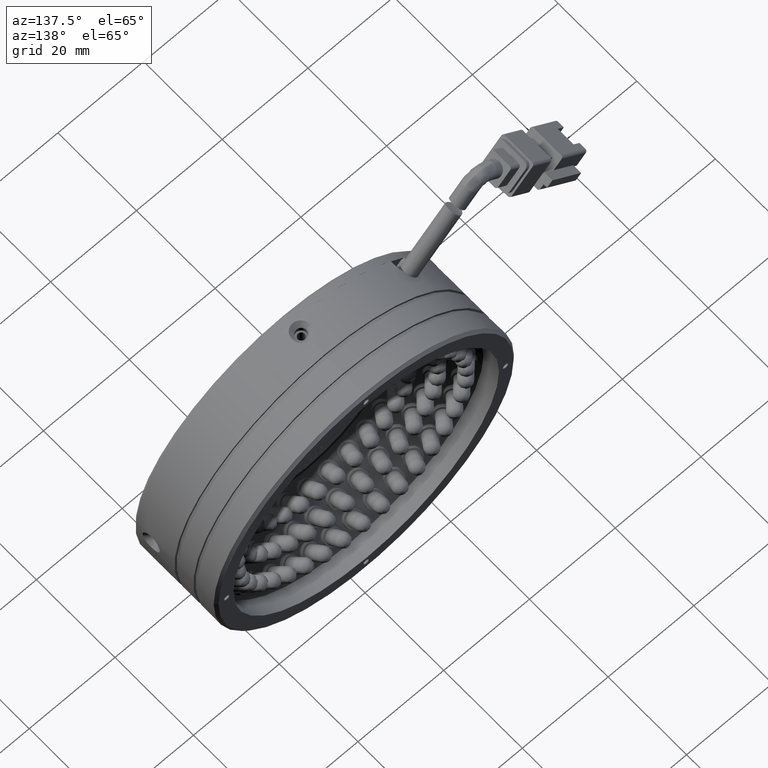
[diagram: clean part render]
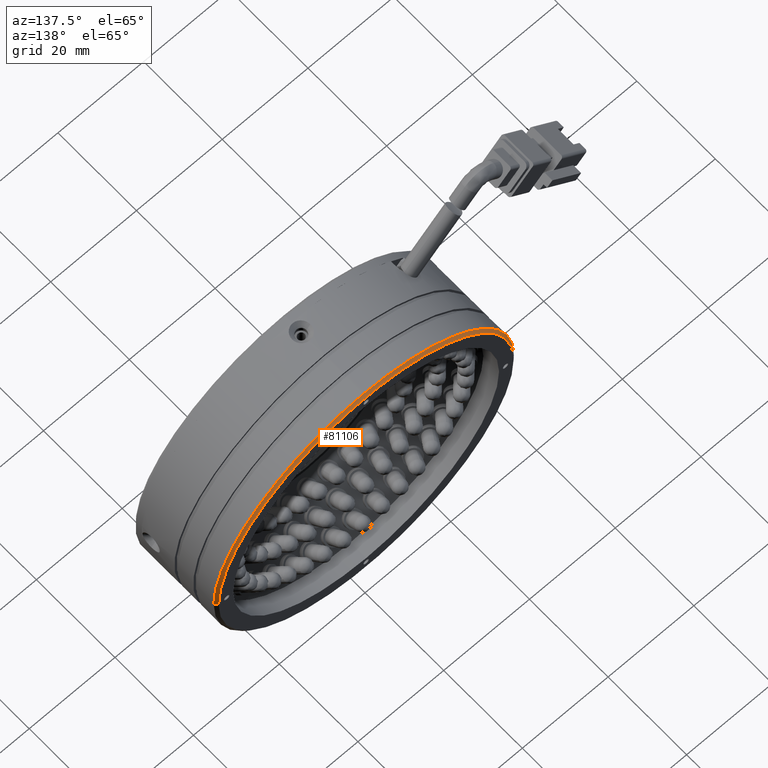
[diagram: same view with one face highlighted and labeled with its STEP entity id]
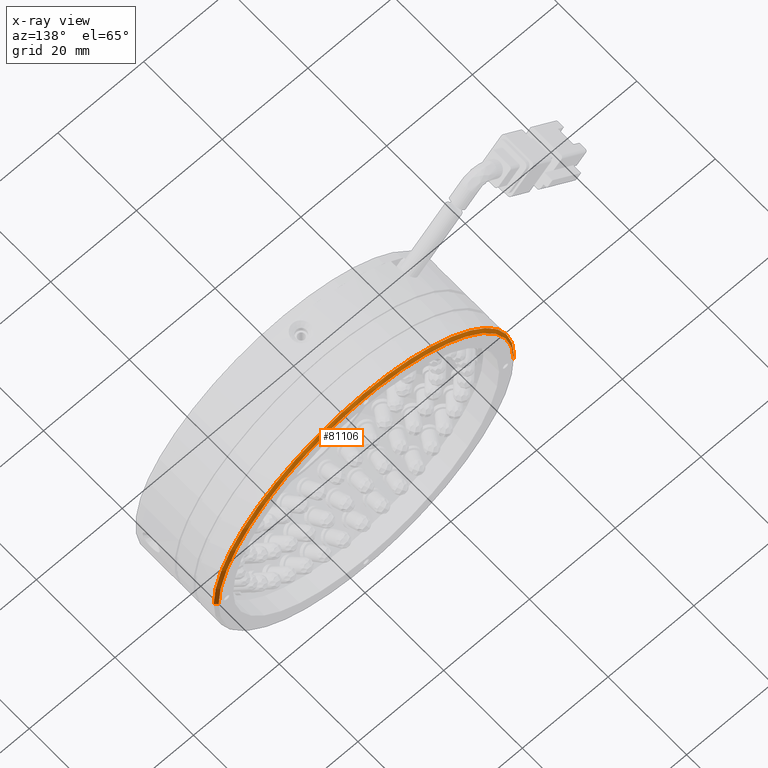
[diagram: x-ray of the same camera — body ghosted, the highlighted face saturated]
A machine part, auxiliary view. The second image highlights one B-rep face of the part: STEP entity #81106.
The next image is the same camera in x-ray: the body ghosted, the highlighted face saturated — about 0% of this face is hidden behind the body in this view.
In plain terms, the highlighted conical surface has half-angle 45 deg.
Its self-contained STEP definition (entity closure, byte-faithful):
#47 = DIRECTION ( 'NONE',  ( -0.7071067811865536800, -0.7071067811865414700, 8.659560562355008000E-017 ) ) ;
#975 = EDGE_CURVE ( 'NONE', #43134, #74250, #33437, .T. ) ;
#3114 = CIRCLE ( 'NONE', #51824, 35.00000000000001400 ) ;
#7512 = EDGE_CURVE ( 'NONE', #29853, #18117, #56009, .T. ) ;
#8892 = CARTESIAN_POINT ( 'NONE',  ( -2.716071020391490200, 16.70727133510872900, -1.131636017531745300E-015 ) ) ;
#9576 = CARTESIAN_POINT ( 'NONE',  ( -37.71607102039150300, 16.70727133510872900, 3.154627779483993200E-015 ) ) ;
#12965 = VECTOR ( 'NONE', #47, 1000.000000000000000 ) ;
#17329 = DIRECTION ( 'NONE',  ( -4.956352788505163400E-017, -1.000000000000000000, 0.0000000000000000000 ) ) ;
#18117 = VERTEX_POINT ( 'NONE', #54919 ) ;
#19286 = CARTESIAN_POINT ( 'NONE',  ( -37.11607102039153000, 17.30727133510869100, 3.117888375509573500E-015 ) ) ;
#23605 = ORIENTED_EDGE ( 'NONE', *, *, #24368, .T. ) ;
#24368 = EDGE_CURVE ( 'NONE', #52963, #43134, #82193, .T. ) ;
#24882 = DIRECTION ( 'NONE',  ( 0.0000000000000000000, 1.000000000000000000, 0.0000000000000000000 ) ) ;
#26576 = ORIENTED_EDGE ( 'NONE', *, *, #7512, .F. ) ;
#29853 = VERTEX_POINT ( 'NONE', #66497 ) ;
#32200 = DIRECTION ( 'NONE',  ( 0.7071067811865536800, -0.7071067811865414700, 0.0000000000000000000 ) ) ;
#33272 = CARTESIAN_POINT ( 'NONE',  ( -2.716071020391490200, 16.70727133510872900, -1.131636017531745300E-015 ) ) ;
#33422 = AXIS2_PLACEMENT_3D ( 'NONE', #64884, #24882, #71688 ) ;
#33437 = CIRCLE ( 'NONE', #33422, 35.00000000000001400 ) ;
#35264 = CARTESIAN_POINT ( 'NONE',  ( -2.716071020391490200, 17.30727133510869100, -1.131636017531745300E-015 ) ) ;
#38675 = EDGE_CURVE ( 'NONE', #29853, #52963, #69068, .T. ) ;
#39972 = DIRECTION ( 'NONE',  ( 0.0000000000000000000, -9.912705577010321900E-017, -1.000000000000000000 ) ) ;
#40742 = CARTESIAN_POINT ( 'NONE',  ( -2.716071020391485700, 16.70727133510872900, 35.00000000000001400 ) ) ;
#41196 = ORIENTED_EDGE ( 'NONE', *, *, #975, .T. ) ;
#41961 = DIRECTION ( 'NONE',  ( 1.000000000000000000, 0.0000000000000000000, 0.0000000000000000000 ) ) ;
#43134 = VERTEX_POINT ( 'NONE', #9576 ) ;
#44178 = DIRECTION ( 'NONE',  ( 1.000000000000000000, -9.912705577010324300E-017, 0.0000000000000000000 ) ) ;
#45690 = CARTESIAN_POINT ( 'NONE',  ( 32.28392897960852500, 16.70727133510872500, -1.131636017531745300E-015 ) ) ;
#45870 = FACE_OUTER_BOUND ( 'NONE', #75045, .T. ) ;
#46870 = CARTESIAN_POINT ( 'NONE',  ( -37.71607102039149600, 16.70727133510873200, 3.154627779483992400E-015 ) ) ;
#47313 = ORIENTED_EDGE ( 'NONE', *, *, #38675, .T. ) ;
#51824 = AXIS2_PLACEMENT_3D ( 'NONE', #33272, #80184, #39972 ) ;
#52963 = VERTEX_POINT ( 'NONE', #19286 ) ;
#54919 = CARTESIAN_POINT ( 'NONE',  ( 32.28392897960851800, 16.70727133510872900, -1.131636017531745300E-015 ) ) ;
#55155 = AXIS2_PLACEMENT_3D ( 'NONE', #8892, #17329, #44178 ) ;
#56009 = LINE ( 'NONE', #45690, #73858 ) ;
#62176 = AXIS2_PLACEMENT_3D ( 'NONE', #35264, #82135, #41961 ) ;
#64884 = CARTESIAN_POINT ( 'NONE',  ( -2.716071020391490200, 16.70727133510872900, -1.131636017531745300E-015 ) ) ;
#66497 = CARTESIAN_POINT ( 'NONE',  ( 31.68392897960855200, 17.30727133510869100, -1.131636017531745300E-015 ) ) ;
#69068 = CIRCLE ( 'NONE', #62176, 34.40000000000004100 ) ;
#71688 = DIRECTION ( 'NONE',  ( 0.0000000000000000000, -9.912705577010321900E-017, -1.000000000000000000 ) ) ;
#72394 = EDGE_CURVE ( 'NONE', #74250, #18117, #3114, .T. ) ;
#73118 = CONICAL_SURFACE ( 'NONE', #55155, 35.00000000000000700, 0.7853981633974569400 ) ;
#73858 = VECTOR ( 'NONE', #32200, 1000.000000000000000 ) ;
#74250 = VERTEX_POINT ( 'NONE', #40742 ) ;
#75045 = EDGE_LOOP ( 'NONE', ( #47313, #23605, #41196, #83000, #26576 ) ) ;
#80184 = DIRECTION ( 'NONE',  ( 0.0000000000000000000, 1.000000000000000000, 0.0000000000000000000 ) ) ;
#81106 = ADVANCED_FACE ( 'NONE', ( #45870 ), #73118, .T. ) ;
#82135 = DIRECTION ( 'NONE',  ( -4.956352788505163400E-017, -1.000000000000000000, 0.0000000000000000000 ) ) ;
#82193 = LINE ( 'NONE', #46870, #12965 ) ;
#83000 = ORIENTED_EDGE ( 'NONE', *, *, #72394, .T. ) ;